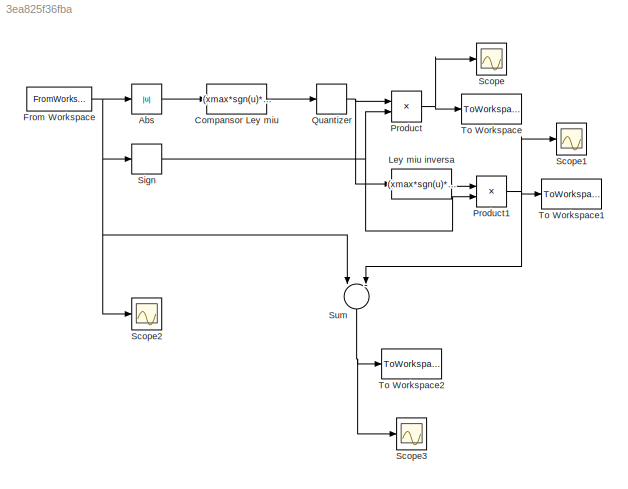
MODEL slx_3ea825f36fba
KIND model
BLOCK [Abs] Abs
  SaturateOnIntegerOverflow = off
BLOCK [Fcn] Compansor Ley miu
  Expr = (xmax*sgn(u)*(ln(1+(255*(abs(u)/xmax))))/ln(1+255))
BLOCK [FromWorkspace] From Workspace
  SampleTime = 1/fs
  VariableName = [t entrada]
  ZeroCross = on
BLOCK [Fcn] Ley miu inversa
  Expr = (xmax*sgn(u)*((1+255)^(abs(u)/xmax)-1)/256)
BLOCK [Product] Product
  InputSameDT = off
  OutDataTypeStr = Inherit: Inherit via internal rule
  Ports = [2, 1]
  RndMeth = Floor
  SaturateOnIntegerOverflow = off
BLOCK [Product] Product1
  InputSameDT = off
  OutDataTypeStr = Inherit: Inherit via internal rule
  Ports = [2, 1]
  RndMeth = Floor
  SaturateOnIntegerOverflow = off
BLOCK [Quantizer] Quantizer
  QuantizationInterval = 1.14*2^(-n)
BLOCK [Scope] Scope
  DataFormat = StructureWithTime
  Floating = off
  NumInputPorts = 1
  Ports = [1]
  SampleTime = 0
  ShowLegends = off
BLOCK [Scope] Scope1
  DataFormat = StructureWithTime
  Floating = off
  NumInputPorts = 1
  Ports = [1]
  SampleTime = 0
  SaveName = ScopeData1
  ShowLegends = off
BLOCK [Scope] Scope2
  DataFormat = StructureWithTime
  Floating = off
  NumInputPorts = 1
  Ports = [1]
  SampleTime = 0
  SaveName = ScopeData2
  ShowLegends = off
BLOCK [Scope] Scope3
  DataFormat = StructureWithTime
  Floating = off
  NumInputPorts = 1
  Ports = [1]
  SampleTime = 0
  SaveName = ScopeData3
  ShowLegends = off
BLOCK [Signum] Sign
BLOCK [Sum] Sum
  InputSameDT = off
  Inputs = |-+
  OutDataTypeStr = Inherit: Inherit via internal rule
  Ports = [2, 1]
  SaturateOnIntegerOverflow = off
BLOCK [ToWorkspace] To Workspace
  MaxDataPoints = inf
  Ports = [1]
  SampleTime = -1
  VariableName = xqu
BLOCK [ToWorkspace] To Workspace1
  MaxDataPoints = inf
  Ports = [1]
  SampleTime = -1
  VariableName = xqu_decom
BLOCK [ToWorkspace] To Workspace2
  MaxDataPoints = inf
  Ports = [1]
  SampleTime = -1
  VariableName = uerror
LINE Abs:1 -> Compansor Ley miu:1
LINE Compansor Ley miu:1 -> Quantizer:1
NET From Workspace:1 -> Abs:1, Scope2:1, Sign:1, Sum:1
LINE Ley miu inversa:1 -> Product1:1
NET Product1:1 -> Scope1:1, Sum:2, To Workspace1:1
NET Product:1 -> Scope:1, To Workspace:1
NET Quantizer:1 -> Ley miu inversa:1, Product:1
NET Sign:1 -> Product1:2, Product:2
NET Sum:1 -> Scope3:1, To Workspace2:1
note: NET lines group one-source signal fan-out (src -> all destinations, sorted); 1:1 wires keep LINE
